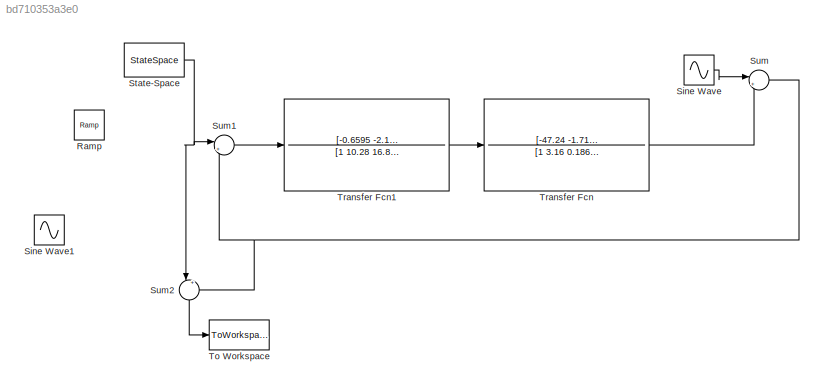
MODEL slx_bd710353a3e0
KIND model
BLOCK [Reference] Ramp  REF=simulink/Sources/Ramp
  Ports = [0, 1]
  SourceBlock = simulink/Sources/Ramp
  SourceType = Ramp
  VectorParams1D = on
  X0 = 0
  slope = 1
  start = 0
BLOCK [Sin] Sine Wave
  Ports = [0, 1]
  SampleTime = 0
BLOCK [Sin] Sine Wave1
  Phase = 1.57
  Ports = [0, 1]
  SampleTime = 0
BLOCK [StateSpace] State-Space
  A = -2
  D = 0
  Ports = [1, 1]
  X0 = 10
BLOCK [Sum] Sum
  IconShape = round
  InputSameDT = off
  Inputs = |++
  OutDataTypeStr = Inherit: Inherit via internal rule
  Ports = [2, 1]
  SaturateOnIntegerOverflow = off
BLOCK [Sum] Sum1
  IconShape = round
  InputSameDT = off
  Inputs = |+-
  OutDataTypeStr = Inherit: Inherit via internal rule
  Ports = [2, 1]
  SaturateOnIntegerOverflow = off
BLOCK [Sum] Sum2
  IconShape = round
  InputSameDT = off
  Inputs = |+-
  OutDataTypeStr = Inherit: Inherit via internal rule
  Ports = [2, 1]
  SaturateOnIntegerOverflow = off
BLOCK [ToWorkspace] To Workspace
  MaxDataPoints = inf
  Ports = [1]
  SampleTime = 0.01
  SaveFormat = Structure With Time
  VariableName = e
BLOCK [TransferFcn] Transfer Fcn
  Denominator = [1 3.16 0.1865 1.3241]
  Numerator = [-47.24 -1.711]
BLOCK [TransferFcn] Transfer Fcn1
  Denominator = [1 10.28 16.82 1.438 0.0305]
  Numerator = [-0.6595 -2.113 -0.211 -0.8787 -0.03703]
LINE Sine Wave:1 -> Sum:1
NET State-Space:1 -> Sum1:1, Sum2:1
LINE Sum1:1 -> Transfer Fcn1:1
LINE Sum2:1 -> To Workspace:1
NET Sum:1 -> Sum1:2, Sum2:2
LINE Transfer Fcn1:1 -> Transfer Fcn:1
LINE Transfer Fcn:1 -> Sum:2
note: NET lines group one-source signal fan-out (src -> all destinations, sorted); 1:1 wires keep LINE
